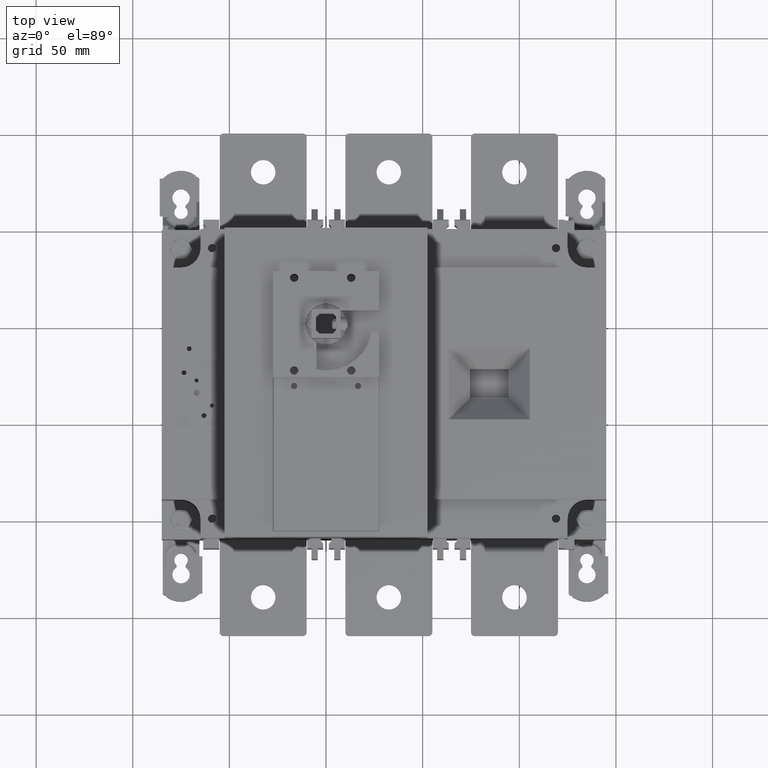
[diagram: clean part render]
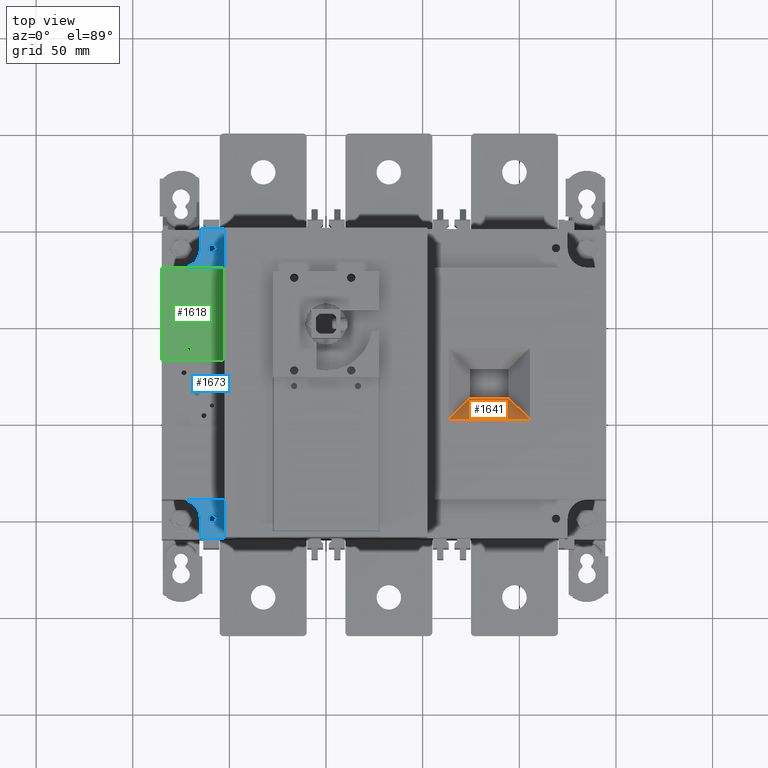
[diagram: same view with three faces highlighted in distinct colors, each labeled with its STEP entity id]
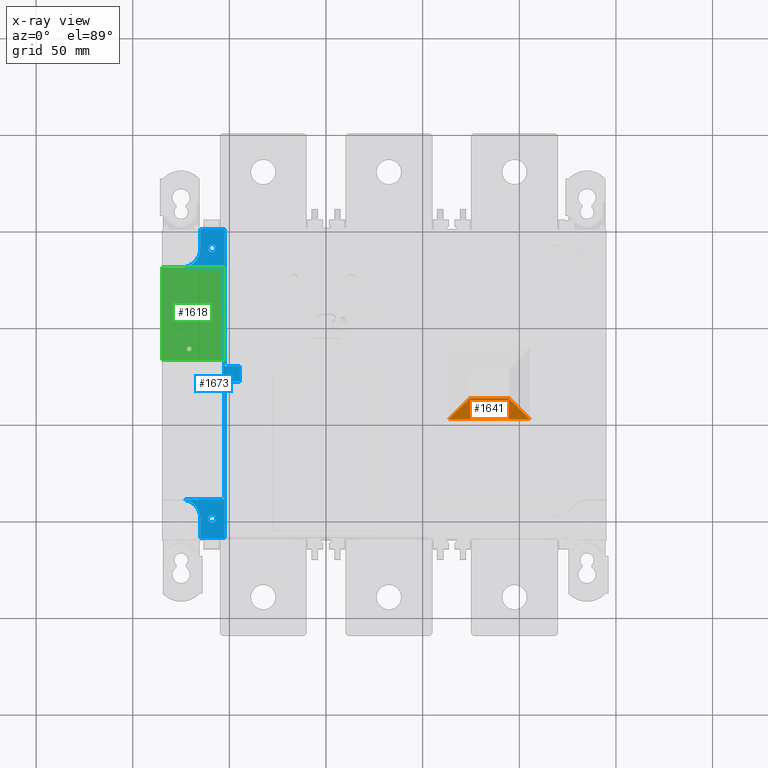
[diagram: x-ray of the same camera — body ghosted, the three highlighted faces saturated]
A machine part, top view with three faces highlighted in distinct colors.
The next image is the same camera in x-ray (body ghosted, the three faces saturated) — at least one of them is partly hidden behind the body in this view.
Their STEP definitions:

[orange] entity #1641 — the highlighted planar face has unit normal (0, 0.7071, 0.7071).
#1641=ADVANCED_FACE('',(#2849),#2236,.T.);
#2236=PLANE('',#15986);
#2849=FACE_OUTER_BOUND('',#3846,.T.);
#3846=EDGE_LOOP('',(#7779,#7780,#7781,#7782));
#7779=ORIENTED_EDGE('',*,*,#11685,.T.);
#7780=ORIENTED_EDGE('',*,*,#11693,.F.);
#7781=ORIENTED_EDGE('',*,*,#11691,.T.);
#7782=ORIENTED_EDGE('',*,*,#11694,.F.);
#9769=VERTEX_POINT('',#24311);
#9770=VERTEX_POINT('',#24313);
#9773=VERTEX_POINT('',#24323);
#9774=VERTEX_POINT('',#24325);
#11685=EDGE_CURVE('',#9770,#9769,#13210,.T.);
#11691=EDGE_CURVE('',#9774,#9773,#13216,.T.);
#11693=EDGE_CURVE('',#9774,#9769,#13218,.T.);
#11694=EDGE_CURVE('',#9770,#9773,#13219,.T.);
#13210=LINE('',#24312,#14638);
#13216=LINE('',#24324,#14644);
#13218=LINE('',#24328,#14646);
#13219=LINE('',#24329,#14647);
#14638=VECTOR('',#19596,1.);
#14644=VECTOR('',#19606,1.);
#14646=VECTOR('',#19610,1.);
#14647=VECTOR('',#19611,1.);
#15986=AXIS2_PLACEMENT_3D('',#24330,#19612,#19613);
#19596=DIRECTION('',(-0.577350269189625,0.577350269189626,-0.577350269189626));
#19606=DIRECTION('',(-0.577350269189625,-0.577350269189626,0.577350269189626));
#19610=DIRECTION('',(1.,0.,0.));
#19611=DIRECTION('',(-1.,0.,0.));
#19612=DIRECTION('',(0.,0.707106781186548,0.707106781186547));
#19613=DIRECTION('',(0.,-0.707106781186547,0.707106781186548));
#24311=CARTESIAN_POINT('',(94.5,-37.5,-48.4000000000012));
#24312=CARTESIAN_POINT('',(91.1666666666665,-34.1666666666667,-51.7333333333345));
#24313=CARTESIAN_POINT('',(105.5,-48.5,-37.4000000000012));
#24323=CARTESIAN_POINT('',(63.5,-48.5,-37.4000000000012));
#24324=CARTESIAN_POINT('',(77.8333333333335,-34.1666666666667,-51.7333333333345));
#24325=CARTESIAN_POINT('',(74.5,-37.5,-48.4000000000012));
#24328=CARTESIAN_POINT('',(84.5,-37.5,-48.4000000000012));
#24329=CARTESIAN_POINT('',(84.5,-48.5,-37.4000000000012));
#24330=CARTESIAN_POINT('',(84.5,-37.5,-48.4000000000012));

[blue] entity #1673 — the highlighted planar face has unit normal (0, 0, -1).
#905=FACE_BOUND('',#3889,.T.);
#906=FACE_BOUND('',#3890,.T.);
#907=FACE_BOUND('',#3891,.T.);
#1673=ADVANCED_FACE('',(#905,#906,#907),#2264,.F.);
#2264=PLANE('',#16022);
#3889=EDGE_LOOP('',(#7959));
#3890=EDGE_LOOP('',(#7960));
#3891=EDGE_LOOP('',(#7961,#7962,#7963,#7964,#7965,#7966,#7967,#7968,#7969,
#7970,#7971,#7972,#7973,#7974));
#4423=CIRCLE('',#15797,2.125);
#4425=CIRCLE('',#15801,2.125);
#4440=CIRCLE('',#15937,10.);
#4442=CIRCLE('',#15956,10.);
#7959=ORIENTED_EDGE('',*,*,#11276,.T.);
#7960=ORIENTED_EDGE('',*,*,#11278,.T.);
#7961=ORIENTED_EDGE('',*,*,#10717,.F.);
#7962=ORIENTED_EDGE('',*,*,#10720,.T.);
#7963=ORIENTED_EDGE('',*,*,#10752,.F.);
#7964=ORIENTED_EDGE('',*,*,#11631,.F.);
#7965=ORIENTED_EDGE('',*,*,#11627,.F.);
#7966=ORIENTED_EDGE('',*,*,#11624,.T.);
#7967=ORIENTED_EDGE('',*,*,#11634,.F.);
#7968=ORIENTED_EDGE('',*,*,#11576,.F.);
#7969=ORIENTED_EDGE('',*,*,#11584,.T.);
#7970=ORIENTED_EDGE('',*,*,#11585,.T.);
#7971=ORIENTED_EDGE('',*,*,#10637,.T.);
#7972=ORIENTED_EDGE('',*,*,#10721,.F.);
#7973=ORIENTED_EDGE('',*,*,#10715,.F.);
#7974=ORIENTED_EDGE('',*,*,#10587,.F.);
#9015=VERTEX_POINT('',#21931);
#9016=VERTEX_POINT('',#21932);
#9057=VERTEX_POINT('',#22030);
#9058=VERTEX_POINT('',#22032);
#9127=VERTEX_POINT('',#22184);
#9128=VERTEX_POINT('',#22188);
#9129=VERTEX_POINT('',#22192);
#9141=VERTEX_POINT('',#22254);
#9509=VERTEX_POINT('',#23478);
#9511=VERTEX_POINT('',#23484);
#9703=VERTEX_POINT('',#24092);
#9704=VERTEX_POINT('',#24094);
#9708=VERTEX_POINT('',#24107);
#9731=VERTEX_POINT('',#24182);
#9735=VERTEX_POINT('',#24190);
#9736=VERTEX_POINT('',#24194);
#10587=EDGE_CURVE('',#9015,#9016,#12332,.T.);
#10637=EDGE_CURVE('',#9058,#9057,#12370,.T.);
#10715=EDGE_CURVE('',#9016,#9127,#12446,.T.);
#10717=EDGE_CURVE('',#9128,#9015,#12448,.T.);
#10720=EDGE_CURVE('',#9128,#9129,#12451,.T.);
#10721=EDGE_CURVE('',#9127,#9057,#12452,.T.);
#10752=EDGE_CURVE('',#9141,#9129,#12480,.T.);
#11276=EDGE_CURVE('',#9509,#9509,#4423,.T.);
#11278=EDGE_CURVE('',#9511,#9511,#4425,.T.);
#11576=EDGE_CURVE('',#9703,#9704,#13107,.T.);
#11584=EDGE_CURVE('',#9703,#9708,#4440,.T.);
#11585=EDGE_CURVE('',#9708,#9058,#13113,.T.);
#11624=EDGE_CURVE('',#9731,#9735,#13152,.T.);
#11627=EDGE_CURVE('',#9731,#9736,#4442,.T.);
#11631=EDGE_CURVE('',#9736,#9141,#13156,.T.);
#11634=EDGE_CURVE('',#9704,#9735,#13159,.T.);
#12332=LINE('',#21930,#13760);
#12370=LINE('',#22031,#13798);
#12446=LINE('',#22183,#13874);
#12448=LINE('',#22187,#13876);
#12451=LINE('',#22193,#13879);
#12452=LINE('',#22194,#13880);
#12480=LINE('',#22255,#13908);
#13107=LINE('',#24093,#14535);
#13113=LINE('',#24111,#14541);
#13152=LINE('',#24191,#14580);
#13156=LINE('',#24204,#14584);
#13159=LINE('',#24209,#14587);
#13760=VECTOR('',#17510,1.);
#13798=VECTOR('',#17588,1.);
#13874=VECTOR('',#17678,1.);
#13876=VECTOR('',#17682,1.);
#13879=VECTOR('',#17687,1.);
#13880=VECTOR('',#17688,1.);
#13908=VECTOR('',#17758,1.);
#14535=VECTOR('',#19393,1.);
#14541=VECTOR('',#19413,1.);
#14580=VECTOR('',#19480,1.);
#14584=VECTOR('',#19496,1.);
#14587=VECTOR('',#19503,1.);
#15797=AXIS2_PLACEMENT_3D('',#23477,#18836,#18837);
#15801=AXIS2_PLACEMENT_3D('',#23483,#18844,#18845);
#15937=AXIS2_PLACEMENT_3D('',#24108,#19407,#19408);
#15956=AXIS2_PLACEMENT_3D('',#24197,#19486,#19487);
#16022=AXIS2_PLACEMENT_3D('',#24409,#19706,#19707);
#17510=DIRECTION('',(-2.84251109024637E-015,-1.,0.));
#17588=DIRECTION('',(1.,-1.62628981326226E-014,0.));
#17678=DIRECTION('',(-1.,0.,0.));
#17682=DIRECTION('',(1.,0.,0.));
#17687=DIRECTION('',(0.,1.,0.));
#17688=DIRECTION('',(0.,-1.,0.));
#17758=DIRECTION('',(1.,0.,0.));
#18836=DIRECTION('',(0.,0.,-1.));
#18837=DIRECTION('',(1.,0.,0.));
#18844=DIRECTION('',(0.,0.,-1.));
#18845=DIRECTION('',(1.,0.,0.));
#19393=DIRECTION('',(1.,8.88178419700125E-016,0.));
#19407=DIRECTION('',(0.,0.,-1.));
#19408=DIRECTION('',(0.999999999999999,0.,0.));
#19413=DIRECTION('',(0.,-1.,0.));
#19480=DIRECTION('',(1.,0.,0.));
#19486=DIRECTION('',(0.,0.,1.));
#19487=DIRECTION('',(0.999999999999999,0.,0.));
#19496=DIRECTION('',(0.,1.,0.));
#19503=DIRECTION('',(0.,1.,0.));
#19706=DIRECTION('',(0.,0.,-1.));
#19707=DIRECTION('',(-1.,0.,0.));
#21930=CARTESIAN_POINT('',(-44.4999999999998,50.0000000000003,-40.4));
#21931=CARTESIAN_POINT('',(-44.5,-21.,-40.4));
#21932=CARTESIAN_POINT('',(-44.5,-29.,-40.4));
#22030=CARTESIAN_POINT('',(-52.5,-109.999999999997,-40.4));
#22031=CARTESIAN_POINT('',(-1.78891879458844E-012,-109.999999999998,-40.4));
#22032=CARTESIAN_POINT('',(-65.,-109.999999999997,-40.4));
#22183=CARTESIAN_POINT('',(52.5,-29.,-40.4));
#22184=CARTESIAN_POINT('',(-52.5,-29.,-40.4));
#22187=CARTESIAN_POINT('',(52.5,-21.,-40.4));
#22188=CARTESIAN_POINT('',(-52.5,-21.,-40.4000000000012));
#22192=CARTESIAN_POINT('',(-52.5,50.,-40.4));
#22193=CARTESIAN_POINT('',(-52.5,50.,-40.4));
#22194=CARTESIAN_POINT('',(-52.5,50.,-40.4));
#22254=CARTESIAN_POINT('',(-65.,50.,-40.4));
#22255=CARTESIAN_POINT('',(-28.,50.,-40.4));
#23477=CARTESIAN_POINT('',(-58.95,40.,-40.4));
#23478=CARTESIAN_POINT('',(-56.825,40.,-40.4));
#23483=CARTESIAN_POINT('',(-58.95,-100.,-40.4));
#23484=CARTESIAN_POINT('',(-56.825,-100.,-40.4));
#24092=CARTESIAN_POINT('',(-75.,-90.,-40.4));
#24093=CARTESIAN_POINT('',(75.65,-90.,-40.4));
#24094=CARTESIAN_POINT('',(-52.9,-90.,-40.4));
#24107=CARTESIAN_POINT('',(-65.,-100.,-40.4));
#24108=CARTESIAN_POINT('',(-75.,-100.,-40.4));
#24111=CARTESIAN_POINT('',(-65.,-105.,-40.4));
#24182=CARTESIAN_POINT('',(-75.,30.,-40.4));
#24190=CARTESIAN_POINT('',(-52.9,30.,-40.4));
#24191=CARTESIAN_POINT('',(-80.,30.,-40.4));
#24194=CARTESIAN_POINT('',(-65.,40.000000000003,-40.4));
#24197=CARTESIAN_POINT('',(-75.,40.000000000003,-40.4));
#24204=CARTESIAN_POINT('',(-65.,0.,-40.4));
#24209=CARTESIAN_POINT('',(-52.9,29.25,-40.4));
#24409=CARTESIAN_POINT('',(-44.5,-102.,-40.4000000000012));

[green] entity #1618 — the highlighted planar face has unit normal (0, 0, 1).
#885=FACE_BOUND('',#3822,.T.);
#886=FACE_BOUND('',#3823,.T.);
#1618=ADVANCED_FACE('',(#885,#886),#2213,.T.);
#2213=PLANE('',#15963);
#3822=EDGE_LOOP('',(#7668));
#3823=EDGE_LOOP('',(#7669,#7670,#7671,#7672));
#4437=CIRCLE('',#15921,1.25);
#7668=ORIENTED_EDGE('',*,*,#11550,.F.);
#7669=ORIENTED_EDGE('',*,*,#11635,.T.);
#7670=ORIENTED_EDGE('',*,*,#11588,.F.);
#7671=ORIENTED_EDGE('',*,*,#11632,.F.);
#7672=ORIENTED_EDGE('',*,*,#11622,.F.);
#9687=VERTEX_POINT('',#24040);
#9711=VERTEX_POINT('',#24117);
#9712=VERTEX_POINT('',#24119);
#9733=VERTEX_POINT('',#24186);
#9734=VERTEX_POINT('',#24188);
#11550=EDGE_CURVE('',#9687,#9687,#4437,.T.);
#11588=EDGE_CURVE('',#9711,#9712,#13116,.T.);
#11622=EDGE_CURVE('',#9733,#9734,#13150,.T.);
#11632=EDGE_CURVE('',#9734,#9711,#13157,.T.);
#11635=EDGE_CURVE('',#9733,#9712,#13160,.T.);
#13116=LINE('',#24118,#14544);
#13150=LINE('',#24187,#14578);
#13157=LINE('',#24207,#14585);
#13160=LINE('',#24211,#14588);
#14544=VECTOR('',#19418,1.);
#14578=VECTOR('',#19478,1.);
#14585=VECTOR('',#19501,1.);
#14588=VECTOR('',#19506,1.);
#15921=AXIS2_PLACEMENT_3D('',#24039,#19344,#19345);
#15963=AXIS2_PLACEMENT_3D('',#24212,#19507,#19508);
#19344=DIRECTION('',(0.,0.,1.));
#19345=DIRECTION('',(1.,0.,0.));
#19418=DIRECTION('',(-1.,0.,0.));
#19478=DIRECTION('',(1.,0.,0.));
#19501=DIRECTION('',(0.,-1.,0.));
#19506=DIRECTION('',(0.,-1.,0.));
#19507=DIRECTION('',(0.,0.,1.));
#19508=DIRECTION('',(1.,0.,0.));
#24039=CARTESIAN_POINT('',(-70.8,-12.1,-37.4000000000012));
#24040=CARTESIAN_POINT('',(-69.55,-12.1,-37.4000000000012));
#24117=CARTESIAN_POINT('',(-52.9,-18.,-37.4000000000012));
#24118=CARTESIAN_POINT('',(-68.95,-18.,-37.4000000000012));
#24119=CARTESIAN_POINT('',(-85.,-18.,-37.4000000000012));
#24186=CARTESIAN_POINT('',(-85.,30.,-37.4000000000012));
#24187=CARTESIAN_POINT('',(-80.,30.,-37.4000000000012));
#24188=CARTESIAN_POINT('',(-52.9,30.,-37.4000000000012));
#24207=CARTESIAN_POINT('',(-52.9,-23.6,-37.4000000000012));
#24211=CARTESIAN_POINT('',(-85.,-23.6,-37.4000000000012));
#24212=CARTESIAN_POINT('',(-14.25,-23.6,-37.4000000000012));